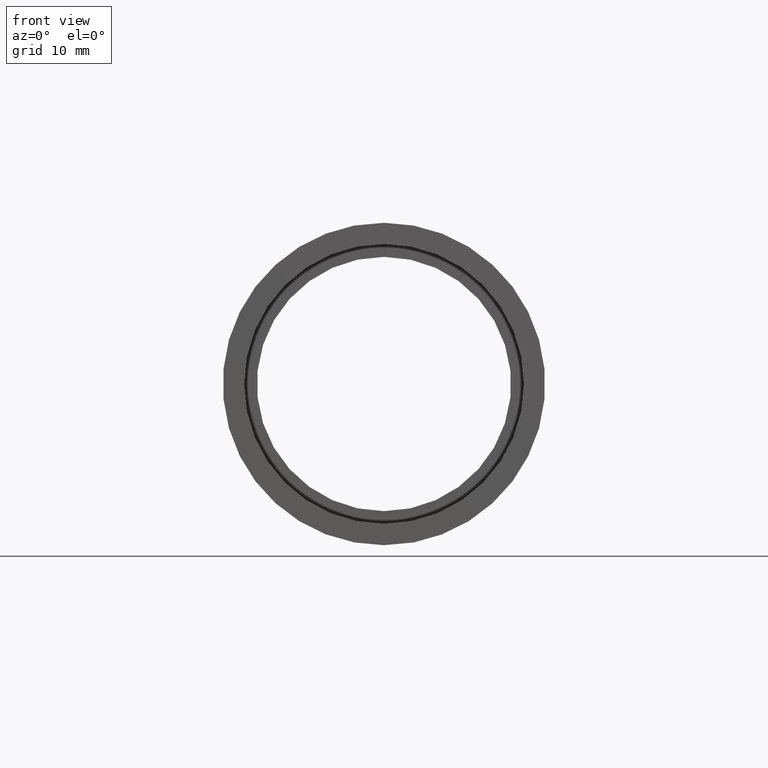
[diagram: clean part render]
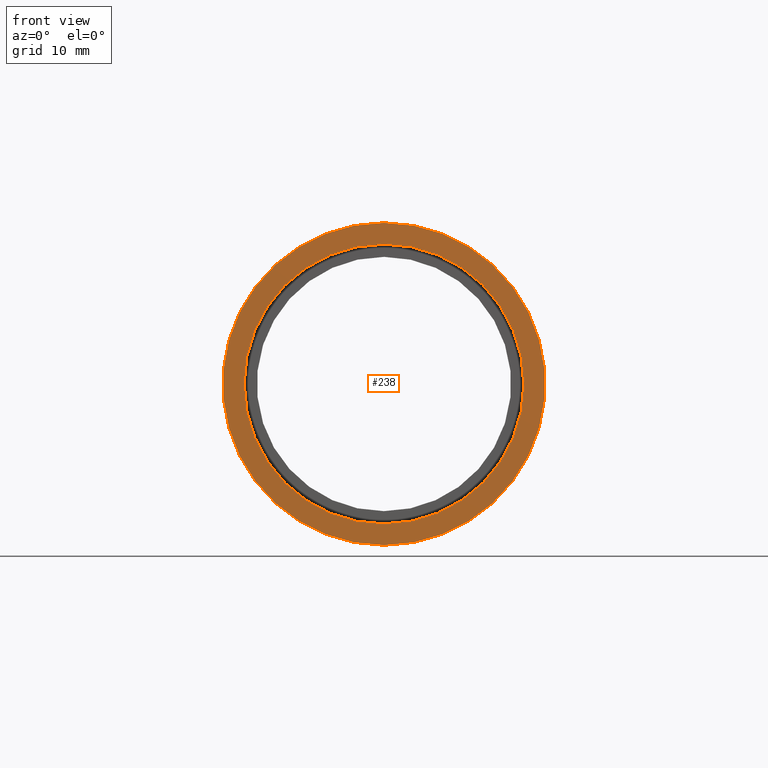
[diagram: same view with one face highlighted and labeled with its STEP entity id]
A machine part, front view. The second image highlights one B-rep face of the part: STEP entity #238.
In plain terms, the highlighted planar face has unit normal (-0, 1, 0).
Its self-contained STEP definition (entity closure, byte-faithful):
#12 = AXIS2_PLACEMENT_3D ( 'NONE', #34, #385, #185 ) ;
#34 = CARTESIAN_POINT ( 'NONE',  ( 0.0000000000000000000, -2.775557561562891400E-014, 0.0000000000000000000 ) ) ;
#43 = CIRCLE ( 'NONE', #75, 15.85000000000002100 ) ;
#46 = EDGE_LOOP ( 'NONE', ( #259, #425 ) ) ;
#59 = CIRCLE ( 'NONE', #389, 13.75000000000002100 ) ;
#66 = CARTESIAN_POINT ( 'NONE',  ( 0.0000000000000000000, -2.775557561562891400E-014, 0.0000000000000000000 ) ) ;
#75 = AXIS2_PLACEMENT_3D ( 'NONE', #446, #244, #455 ) ;
#88 = EDGE_CURVE ( 'NONE', #120, #388, #59, .T. ) ;
#120 = VERTEX_POINT ( 'NONE', #421 ) ;
#159 = EDGE_CURVE ( 'NONE', #361, #340, #518, .T. ) ;
#162 = ORIENTED_EDGE ( 'NONE', *, *, #381, .F. ) ;
#171 = DIRECTION ( 'NONE',  ( -0.0000000000000000000, 1.000000000000000000, -0.0000000000000000000 ) ) ;
#185 = DIRECTION ( 'NONE',  ( 0.0000000000000000000, 0.0000000000000000000, 1.000000000000000000 ) ) ;
#223 = ORIENTED_EDGE ( 'NONE', *, *, #159, .F. ) ;
#235 = EDGE_LOOP ( 'NONE', ( #223, #162 ) ) ;
#238 = ADVANCED_FACE ( 'NONE', ( #486, #402 ), #624, .F. ) ;
#244 = DIRECTION ( 'NONE',  ( -0.0000000000000000000, 1.000000000000000000, -0.0000000000000000000 ) ) ;
#259 = ORIENTED_EDGE ( 'NONE', *, *, #458, .T. ) ;
#292 = DIRECTION ( 'NONE',  ( -0.0000000000000000000, 1.000000000000000000, 0.0000000000000000000 ) ) ;
#296 = CARTESIAN_POINT ( 'NONE',  ( 0.0000000000000000000, -2.775557561562891400E-014, 13.75000000000002100 ) ) ;
#299 = CARTESIAN_POINT ( 'NONE',  ( 1.941065176648557100E-015, -2.775557561562891400E-014, -15.85000000000002100 ) ) ;
#306 = CARTESIAN_POINT ( 'NONE',  ( 0.0000000000000000000, -2.775557561562891400E-014, 15.85000000000002100 ) ) ;
#340 = VERTEX_POINT ( 'NONE', #299 ) ;
#356 = DIRECTION ( 'NONE',  ( -0.0000000000000000000, 1.000000000000000000, -0.0000000000000000000 ) ) ;
#361 = VERTEX_POINT ( 'NONE', #306 ) ;
#381 = EDGE_CURVE ( 'NONE', #340, #361, #43, .T. ) ;
#385 = DIRECTION ( 'NONE',  ( -0.0000000000000000000, 1.000000000000000000, -0.0000000000000000000 ) ) ;
#388 = VERTEX_POINT ( 'NONE', #296 ) ;
#389 = AXIS2_PLACEMENT_3D ( 'NONE', #66, #171, #470 ) ;
#402 = FACE_BOUND ( 'NONE', #46, .T. ) ;
#421 = CARTESIAN_POINT ( 'NONE',  ( 1.683889348827613200E-015, -2.775557561562891400E-014, -13.75000000000002100 ) ) ;
#425 = ORIENTED_EDGE ( 'NONE', *, *, #88, .T. ) ;
#437 = CARTESIAN_POINT ( 'NONE',  ( 13.75000000000002100, -1.554524340841388500E-014, 0.0000000000000000000 ) ) ;
#446 = CARTESIAN_POINT ( 'NONE',  ( 0.0000000000000000000, -2.775557561562891400E-014, 0.0000000000000000000 ) ) ;
#455 = DIRECTION ( 'NONE',  ( 0.0000000000000000000, 0.0000000000000000000, 1.000000000000000000 ) ) ;
#458 = EDGE_CURVE ( 'NONE', #388, #120, #589, .T. ) ;
#470 = DIRECTION ( 'NONE',  ( 0.0000000000000000000, 0.0000000000000000000, 1.000000000000000000 ) ) ;
#478 = AXIS2_PLACEMENT_3D ( 'NONE', #437, #292, #586 ) ;
#486 = FACE_OUTER_BOUND ( 'NONE', #235, .T. ) ;
#487 = AXIS2_PLACEMENT_3D ( 'NONE', #508, #356, #516 ) ;
#508 = CARTESIAN_POINT ( 'NONE',  ( 0.0000000000000000000, -2.775557561562891400E-014, 0.0000000000000000000 ) ) ;
#516 = DIRECTION ( 'NONE',  ( 0.0000000000000000000, 0.0000000000000000000, 1.000000000000000000 ) ) ;
#518 = CIRCLE ( 'NONE', #12, 15.85000000000002100 ) ;
#586 = DIRECTION ( 'NONE',  ( 0.0000000000000000000, 0.0000000000000000000, 1.000000000000000000 ) ) ;
#589 = CIRCLE ( 'NONE', #487, 13.75000000000002100 ) ;
#624 = PLANE ( 'NONE',  #478 ) ;